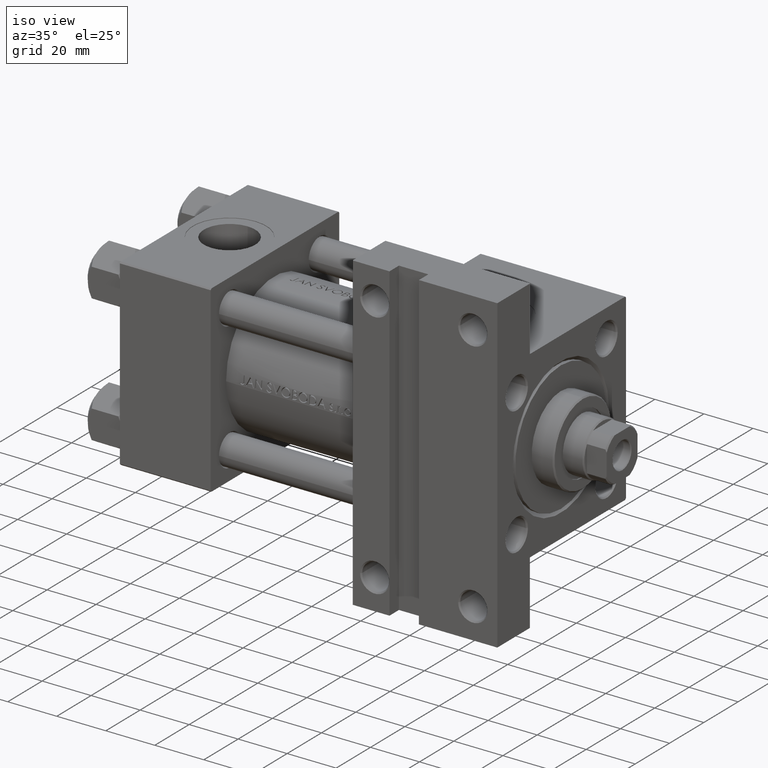
[diagram: clean part render]
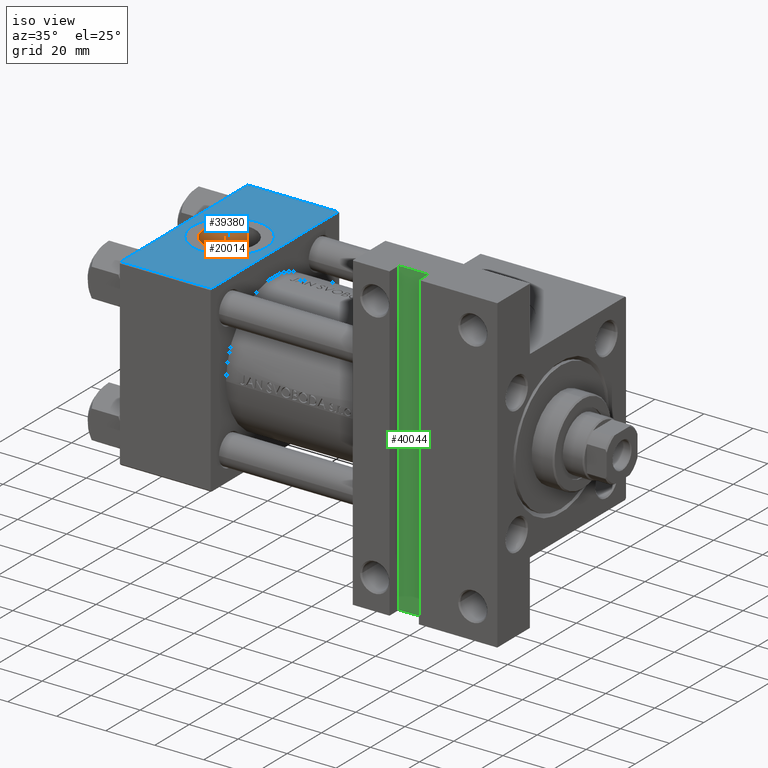
[diagram: same view with three faces highlighted in distinct colors, each labeled with its STEP entity id]
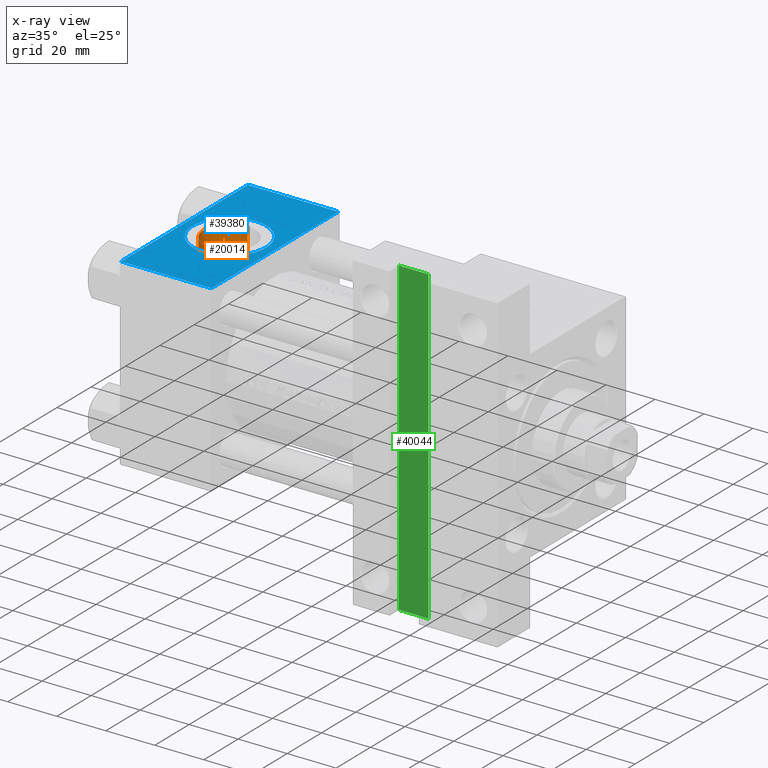
[diagram: x-ray of the same camera — body ghosted, the three highlighted faces saturated]
A machine part, iso view with three faces highlighted in distinct colors.
The next image is the same camera in x-ray (body ghosted, the three faces saturated) — at least one of them is partly hidden behind the body in this view.
Their STEP definitions:

[orange] entity #20014 — the highlighted cylindrical surface (edge-blend (fillet) strip) has radius 10.48 mm, axis along (-0, -0, 1).
#677 = LINE ( 'NONE', #42875, #15930 ) ;
#2772 = CARTESIAN_POINT ( 'NONE',  ( 18.50000000000000000, -26.60000000000000497, 10.47999999999999865 ) ) ;
#2893 = FACE_OUTER_BOUND ( 'NONE', #30176, .T. ) ;
#2933 = DIRECTION ( 'NONE',  ( 0.000000000000000000, -1.000000000000000000, -8.673617379884036705E-17 ) ) ;
#3360 = EDGE_CURVE ( 'NONE', #48791, #20777, #49055, .T. ) ;
#5951 = CARTESIAN_POINT ( 'NONE',  ( 18.50000000000000000, -26.60000000000000497, -10.48000000000000220 ) ) ;
#5955 = CARTESIAN_POINT ( 'NONE',  ( 18.50000000000000000, -26.60000000000000497, 10.47999999999999865 ) ) ;
#9431 = CARTESIAN_POINT ( 'NONE',  ( 18.50000000000000000, -37.30000000000000426, -10.48000000000000398 ) ) ;
#9834 = DIRECTION ( 'NONE',  ( 0.000000000000000000, 0.000000000000000000, -1.000000000000000000 ) ) ;
#10425 = CYLINDRICAL_SURFACE ( 'NONE', #32826, 10.48000000000000043 ) ;
#12917 = ORIENTED_EDGE ( 'NONE', *, *, #35261, .T. ) ;
#13224 = CIRCLE ( 'NONE', #47488, 10.48000000000000043 ) ;
#15930 = VECTOR ( 'NONE', #19528, 1000.000000000000000 ) ;
#17889 = EDGE_CURVE ( 'NONE', #20777, #35308, #677, .T. ) ;
#19528 = DIRECTION ( 'NONE',  ( -0.000000000000000000, -1.000000000000000000, -8.673617379884036705E-17 ) ) ;
#20014 = ADVANCED_FACE ( 'NONE', ( #2893 ), #10425, .F. ) ;
#20777 = VERTEX_POINT ( 'NONE', #5951 ) ;
#25736 = DIRECTION ( 'NONE',  ( 0.000000000000000000, 0.000000000000000000, -1.000000000000000000 ) ) ;
#26744 = DIRECTION ( 'NONE',  ( -0.000000000000000000, -1.000000000000000000, -8.673617379884036705E-17 ) ) ;
#29394 = LINE ( 'NONE', #2772, #40442 ) ;
#29605 = ORIENTED_EDGE ( 'NONE', *, *, #3360, .F. ) ;
#30176 = EDGE_LOOP ( 'NONE', ( #29605, #12917, #45003, #34172 ) ) ;
#30304 = CARTESIAN_POINT ( 'NONE',  ( 18.50000000000000000, -37.30000000000000426, -3.452099717193846907E-15 ) ) ;
#32826 = AXIS2_PLACEMENT_3D ( 'NONE', #49111, #26744, #25736 ) ;
#33572 = DIRECTION ( 'NONE',  ( 0.000000000000000000, 0.000000000000000000, -1.000000000000000000 ) ) ;
#34172 = ORIENTED_EDGE ( 'NONE', *, *, #17889, .F. ) ;
#34605 = AXIS2_PLACEMENT_3D ( 'NONE', #39986, #48011, #9834 ) ;
#35261 = EDGE_CURVE ( 'NONE', #48791, #35494, #29394, .T. ) ;
#35308 = VERTEX_POINT ( 'NONE', #9431 ) ;
#35494 = VERTEX_POINT ( 'NONE', #36965 ) ;
#36965 = CARTESIAN_POINT ( 'NONE',  ( 18.50000000000000000, -37.30000000000000426, 10.47999999999999687 ) ) ;
#38146 = EDGE_CURVE ( 'NONE', #35494, #35308, #13224, .T. ) ;
#39986 = CARTESIAN_POINT ( 'NONE',  ( 18.50000000000000000, -26.60000000000000497, -2.524022657546255111E-15 ) ) ;
#40442 = VECTOR ( 'NONE', #40951, 1000.000000000000000 ) ;
#40951 = DIRECTION ( 'NONE',  ( -0.000000000000000000, -1.000000000000000000, -8.673617379884036705E-17 ) ) ;
#42875 = CARTESIAN_POINT ( 'NONE',  ( 18.50000000000000000, -26.60000000000000497, -10.48000000000000220 ) ) ;
#45003 = ORIENTED_EDGE ( 'NONE', *, *, #38146, .T. ) ;
#47488 = AXIS2_PLACEMENT_3D ( 'NONE', #30304, #2933, #33572 ) ;
#48011 = DIRECTION ( 'NONE',  ( 0.000000000000000000, -1.000000000000000000, -8.673617379884036705E-17 ) ) ;
#48791 = VERTEX_POINT ( 'NONE', #5955 ) ;
#49055 = CIRCLE ( 'NONE', #34605, 10.48000000000000043 ) ;
#49111 = CARTESIAN_POINT ( 'NONE',  ( 18.50000000000000000, -26.60000000000000497, -2.524022657546255111E-15 ) ) ;

[blue] entity #39380 — the highlighted planar face has unit normal (0, 0, -1).
#174 = FACE_OUTER_BOUND ( 'NONE', #22827, .T. ) ;
#876 = CARTESIAN_POINT ( 'NONE',  ( 37.00000000000000000, -37.50000000000000000, -37.00000000000003553 ) ) ;
#1454 = DIRECTION ( 'NONE',  ( 0.000000000000000000, 9.251858538542971581E-17, -1.000000000000000000 ) ) ;
#1694 = CARTESIAN_POINT ( 'NONE',  ( 37.00000000000000000, -37.50000000000000711, 36.99999999999999289 ) ) ;
#1890 = DIRECTION ( 'NONE',  ( 0.000000000000000000, 0.000000000000000000, -1.000000000000000000 ) ) ;
#3106 = DIRECTION ( 'NONE',  ( 1.000000000000000000, 0.000000000000000000, 0.000000000000000000 ) ) ;
#5902 = EDGE_CURVE ( 'NONE', #20334, #47503, #38390, .T. ) ;
#7714 = PLANE ( 'NONE',  #21883 ) ;
#8370 = EDGE_CURVE ( 'NONE', #26449, #44542, #37515, .T. ) ;
#9983 = DIRECTION ( 'NONE',  ( 0.000000000000000000, -1.000000000000000000, -8.673617379884036705E-17 ) ) ;
#10730 = CARTESIAN_POINT ( 'NONE',  ( 37.00000000000000000, -37.50000000000000711, 37.49999999999999289 ) ) ;
#10887 = CARTESIAN_POINT ( 'NONE',  ( 37.00000000000000000, -37.50000000000000000, -37.00000000000003553 ) ) ;
#11382 = DIRECTION ( 'NONE',  ( 0.000000000000000000, 9.251858538542971581E-17, -1.000000000000000000 ) ) ;
#13967 = CIRCLE ( 'NONE', #42043, 15.00000000000000178 ) ;
#14248 = DIRECTION ( 'NONE',  ( -1.000000000000000000, 0.000000000000000000, 0.000000000000000000 ) ) ;
#16212 = ORIENTED_EDGE ( 'NONE', *, *, #33957, .F. ) ;
#16531 = LINE ( 'NONE', #32820, #17956 ) ;
#16696 = ORIENTED_EDGE ( 'NONE', *, *, #28501, .T. ) ;
#16929 = ORIENTED_EDGE ( 'NONE', *, *, #36891, .T. ) ;
#17044 = VECTOR ( 'NONE', #11382, 1000.000000000000000 ) ;
#17338 = VECTOR ( 'NONE', #3106, 1000.000000000000000 ) ;
#17956 = VECTOR ( 'NONE', #1454, 1000.000000000000000 ) ;
#18781 = DIRECTION ( 'NONE',  ( -0.000000000000000000, 1.000000000000000000, 9.251858538542971581E-17 ) ) ;
#19854 = CARTESIAN_POINT ( 'NONE',  ( 18.50000000000000000, -37.50000000000000711, -15.00000000000000533 ) ) ;
#20334 = VERTEX_POINT ( 'NONE', #25933 ) ;
#21831 = VERTEX_POINT ( 'NONE', #1694 ) ;
#21883 = AXIS2_PLACEMENT_3D ( 'NONE', #10730, #18781, #26038 ) ;
#22827 = EDGE_LOOP ( 'NONE', ( #16696, #24616, #16212, #16929 ) ) ;
#24616 = ORIENTED_EDGE ( 'NONE', *, *, #8370, .T. ) ;
#25298 = DIRECTION ( 'NONE',  ( 0.000000000000000000, 0.000000000000000000, -1.000000000000000000 ) ) ;
#25933 = CARTESIAN_POINT ( 'NONE',  ( 18.50000000000000355, -37.50000000000000711, 14.99999999999999822 ) ) ;
#26038 = DIRECTION ( 'NONE',  ( 0.000000000000000000, -9.251858538542971581E-17, 1.000000000000000000 ) ) ;
#26449 = VERTEX_POINT ( 'NONE', #49017 ) ;
#26529 = FACE_BOUND ( 'NONE', #45799, .T. ) ;
#26632 = CARTESIAN_POINT ( 'NONE',  ( 0.000000000000000000, -37.50000000000000711, 36.99999999999999289 ) ) ;
#28501 = EDGE_CURVE ( 'NONE', #28825, #26449, #35246, .T. ) ;
#28825 = VERTEX_POINT ( 'NONE', #26632 ) ;
#29063 = CARTESIAN_POINT ( 'NONE',  ( 18.50000000000000000, -37.50000000000000711, -3.469446951953614978E-15 ) ) ;
#32820 = CARTESIAN_POINT ( 'NONE',  ( 37.00000000000000000, -37.50000000000000711, 37.49999999999999289 ) ) ;
#33320 = LINE ( 'NONE', #48650, #48481 ) ;
#33957 = EDGE_CURVE ( 'NONE', #21831, #44542, #16531, .T. ) ;
#35246 = LINE ( 'NONE', #45784, #17044 ) ;
#36037 = EDGE_CURVE ( 'NONE', #47503, #20334, #13967, .T. ) ;
#36891 = EDGE_CURVE ( 'NONE', #21831, #28825, #33320, .T. ) ;
#37022 = DIRECTION ( 'NONE',  ( 0.000000000000000000, -1.000000000000000000, -8.673617379884036705E-17 ) ) ;
#37515 = LINE ( 'NONE', #10887, #17338 ) ;
#38390 = CIRCLE ( 'NONE', #44794, 15.00000000000000178 ) ;
#39380 = ADVANCED_FACE ( 'NONE', ( #26529, #174 ), #7714, .F. ) ;
#41712 = ORIENTED_EDGE ( 'NONE', *, *, #36037, .F. ) ;
#42043 = AXIS2_PLACEMENT_3D ( 'NONE', #29063, #9983, #25298 ) ;
#43284 = ORIENTED_EDGE ( 'NONE', *, *, #5902, .F. ) ;
#43840 = CARTESIAN_POINT ( 'NONE',  ( 18.50000000000000000, -37.50000000000000711, -3.469446951953614978E-15 ) ) ;
#44542 = VERTEX_POINT ( 'NONE', #876 ) ;
#44794 = AXIS2_PLACEMENT_3D ( 'NONE', #43840, #37022, #1890 ) ;
#45784 = CARTESIAN_POINT ( 'NONE',  ( 0.000000000000000000, -37.50000000000000711, 37.49999999999999289 ) ) ;
#45799 = EDGE_LOOP ( 'NONE', ( #41712, #43284 ) ) ;
#47503 = VERTEX_POINT ( 'NONE', #19854 ) ;
#48481 = VECTOR ( 'NONE', #14248, 1000.000000000000000 ) ;
#48650 = CARTESIAN_POINT ( 'NONE',  ( 37.00000000000000000, -37.50000000000000711, 36.99999999999999289 ) ) ;
#49017 = CARTESIAN_POINT ( 'NONE',  ( 0.000000000000000000, -37.50000000000000000, -37.00000000000003553 ) ) ;

[green] entity #40044 — the highlighted planar face has unit normal (0, -1, 0).
#1212 = VERTEX_POINT ( 'NONE', #32866 ) ;
#5641 = EDGE_CURVE ( 'NONE', #37477, #32184, #34550, .T. ) ;
#5961 = ORIENTED_EDGE ( 'NONE', *, *, #14188, .T. ) ;
#11710 = CARTESIAN_POINT ( 'NONE',  ( 110.0000000000000000, -63.50000000000000000, -32.00000000000000000 ) ) ;
#12075 = CARTESIAN_POINT ( 'NONE',  ( 110.0000000000000000, -63.50000000000000000, -32.00000000000000000 ) ) ;
#12540 = CARTESIAN_POINT ( 'NONE',  ( 122.0000000000000000, -63.50000000000000000, -32.00000000000000000 ) ) ;
#13290 = DIRECTION ( 'NONE',  ( -0.000000000000000000, -1.000000000000000000, -0.000000000000000000 ) ) ;
#14188 = EDGE_CURVE ( 'NONE', #18493, #37477, #46482, .T. ) ;
#14611 = VECTOR ( 'NONE', #41239, 1000.000000000000000 ) ;
#16599 = ORIENTED_EDGE ( 'NONE', *, *, #5641, .T. ) ;
#17557 = DIRECTION ( 'NONE',  ( 0.000000000000000000, 0.000000000000000000, -1.000000000000000000 ) ) ;
#17789 = FACE_OUTER_BOUND ( 'NONE', #47599, .T. ) ;
#18390 = LINE ( 'NONE', #22652, #14611 ) ;
#18493 = VERTEX_POINT ( 'NONE', #20358 ) ;
#18850 = VECTOR ( 'NONE', #13290, 1000.000000000000000 ) ;
#20358 = CARTESIAN_POINT ( 'NONE',  ( 122.0000000000000000, -63.50000000000001421, -32.00000000000000000 ) ) ;
#22652 = CARTESIAN_POINT ( 'NONE',  ( 110.0000000000000000, 63.50000000000000000, -32.00000000000000000 ) ) ;
#24458 = CARTESIAN_POINT ( 'NONE',  ( 110.0000000000000000, 63.50000000000000000, -32.00000000000000000 ) ) ;
#25555 = CARTESIAN_POINT ( 'NONE',  ( 0.000000000000000000, 0.000000000000000000, -32.00000000000000000 ) ) ;
#26349 = CARTESIAN_POINT ( 'NONE',  ( 110.0000000000000000, -63.50000000000000000, -32.00000000000000000 ) ) ;
#27011 = DIRECTION ( 'NONE',  ( 0.000000000000000000, 1.000000000000000000, 0.000000000000000000 ) ) ;
#27375 = DIRECTION ( 'NONE',  ( -1.000000000000000000, -0.000000000000000000, -0.000000000000000000 ) ) ;
#28091 = LINE ( 'NONE', #12540, #18850 ) ;
#31430 = EDGE_CURVE ( 'NONE', #32184, #1212, #18390, .T. ) ;
#32184 = VERTEX_POINT ( 'NONE', #24458 ) ;
#32866 = CARTESIAN_POINT ( 'NONE',  ( 122.0000000000000000, 63.50000000000000000, -32.00000000000000000 ) ) ;
#34550 = LINE ( 'NONE', #11710, #43199 ) ;
#36746 = VECTOR ( 'NONE', #27375, 1000.000000000000000 ) ;
#37477 = VERTEX_POINT ( 'NONE', #26349 ) ;
#37510 = ORIENTED_EDGE ( 'NONE', *, *, #31430, .T. ) ;
#37728 = EDGE_CURVE ( 'NONE', #1212, #18493, #28091, .T. ) ;
#40044 = ADVANCED_FACE ( 'NONE', ( #17789 ), #44171, .T. ) ;
#41239 = DIRECTION ( 'NONE',  ( 1.000000000000000000, 0.000000000000000000, 0.000000000000000000 ) ) ;
#41993 = ORIENTED_EDGE ( 'NONE', *, *, #37728, .T. ) ;
#42726 = AXIS2_PLACEMENT_3D ( 'NONE', #25555, #17557, #44421 ) ;
#43199 = VECTOR ( 'NONE', #27011, 1000.000000000000000 ) ;
#44171 = PLANE ( 'NONE',  #42726 ) ;
#44421 = DIRECTION ( 'NONE',  ( -1.000000000000000000, 0.000000000000000000, -0.000000000000000000 ) ) ;
#46482 = LINE ( 'NONE', #12075, #36746 ) ;
#47599 = EDGE_LOOP ( 'NONE', ( #41993, #5961, #16599, #37510 ) ) ;